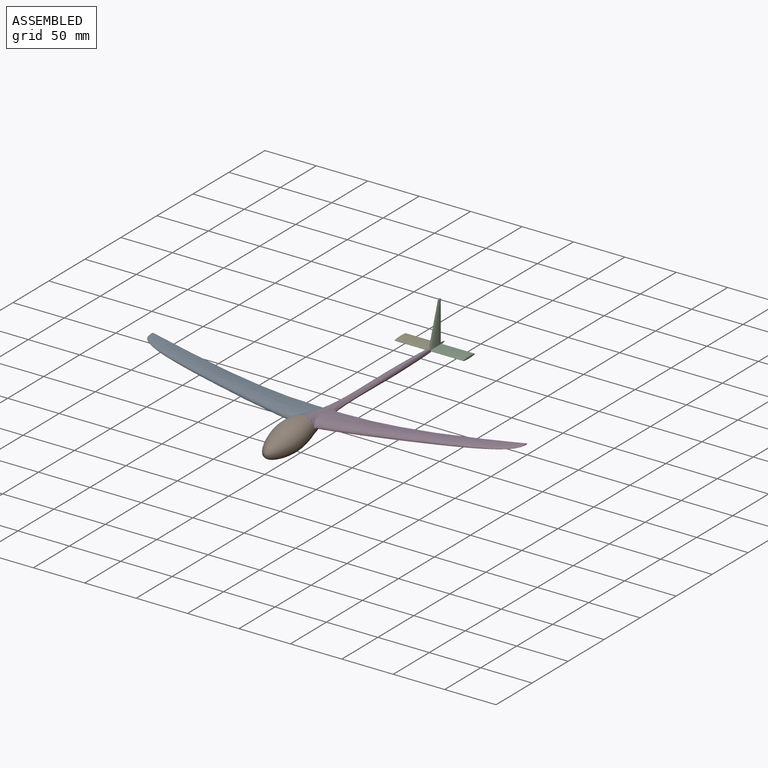
[diagram: assembled view]
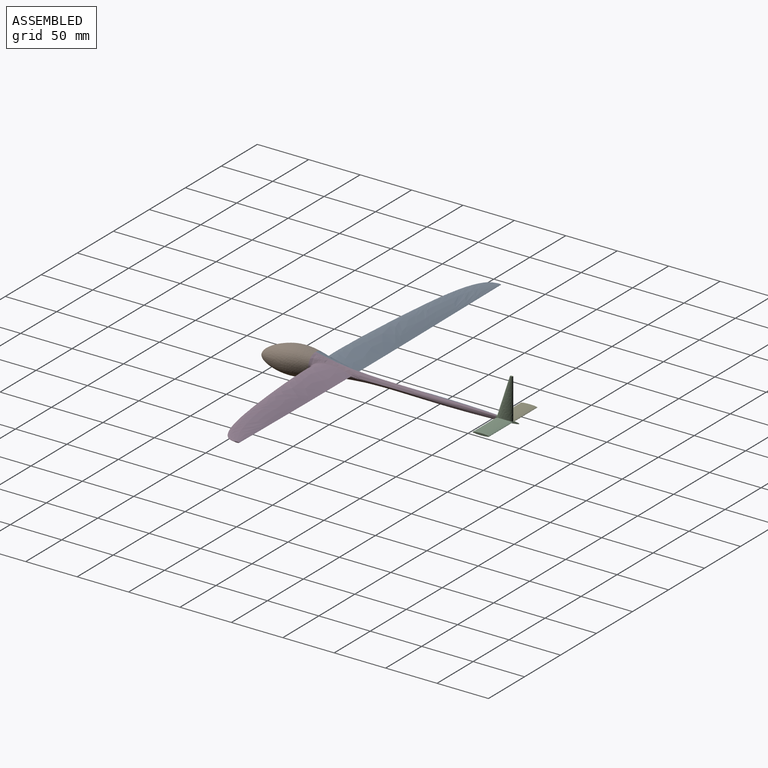
[diagram: assembled view, second angle]
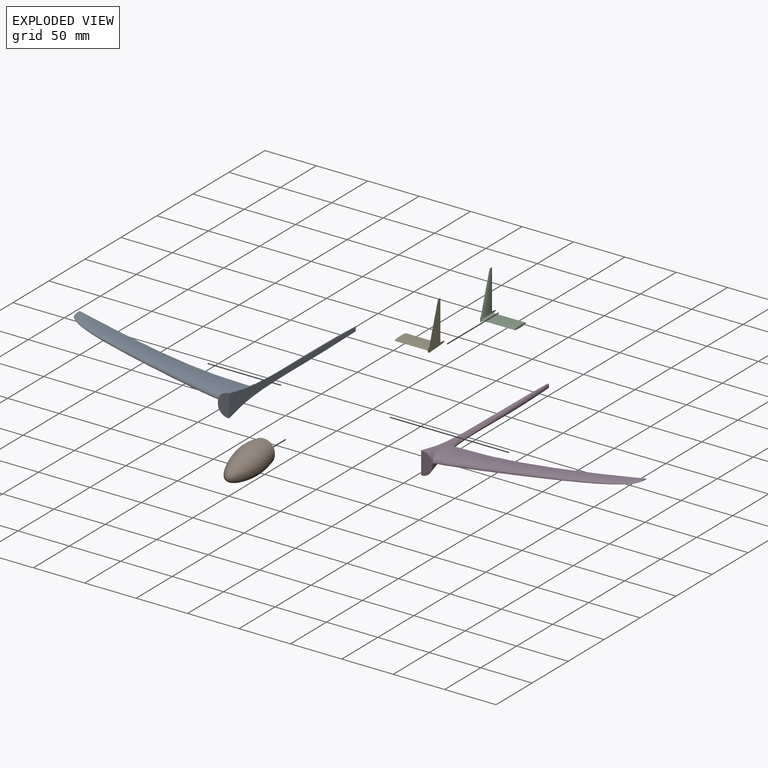
[diagram: exploded view]
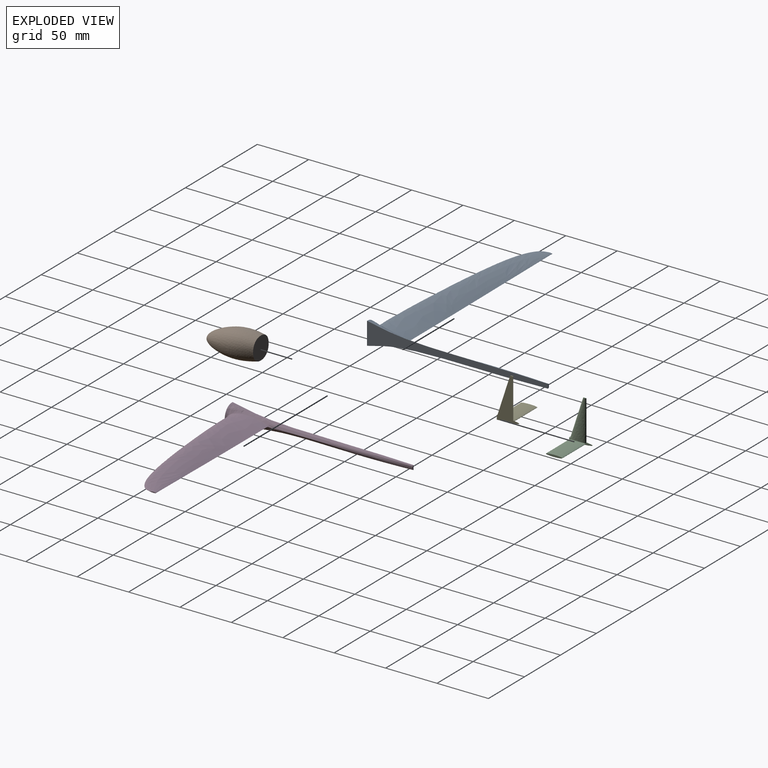
[diagram: exploded view, second angle]
ASSEMBLY  parts=5 mates=4
PART A: 19 faces, bbox 190.2x198.1x28.8 mm
  f0: bspline ~195.77x22.84mm, area 1938.5mm2, adj f1,f7,f8,f9,f10
  f1: plane 176.23x22.06mm, normal (1,0,0), area 1382.1mm2, adj f0,f9,f10
  f2: plane 5x1.02mm, normal (-1,0,0), area 4mm2, adj f3,f4
  f3: bspline ~168.85x49.82mm, area 4922mm2, adj f2,f4,f5
  f4: bspline ~168.85x49.82mm, area 4643.6mm2, adj f2,f3,f6
  f5: extruded ~35.47x8.45mm, area 250.8mm2, adj f3,f6,f7,f8
  f6: extruded ~35x6.94mm, area 163.7mm2, adj f4,f5,f7
  f7: bspline ~52.14x8.75mm, area 97.4mm2, adj f0,f5,f6,f8
  f8: bspline ~49.63x10.01mm, area 59.8mm2, adj f0,f5,f7
  f9: plane 4.2x1.22mm, normal (0,1,0), area 4.5mm2, adj f0,f1
  f10: plane 23.06x11.97mm, normal (0,-1,0), area 192.6mm2, adj f0,f1
  f11: offset ~191.34x23.17mm, area 1344.6mm2, adj f12,f13,f15,f16,f17,f18
  f12: plane 175x20.69mm, normal (-1,0,0), area 1163.1mm2, adj f11,f17,f18
  f13: plane 34.81x19.06mm, normal (1,0,0), area 218.1mm2, adj f11,f14,f15,f16,f18
  f14: extruded ~22.39x3.81mm, area 33.1mm2, adj f13,f15,f16
  f15: bspline ~36.94x5.8mm, area 41mm2, adj f11,f13,f14,f16
  f16: bspline ~43.48x9.52mm, area 53.9mm2, adj f11,f13,f14,f15
  f17: plane 2.86x0.25mm, normal (0,-1,0), area 0.6mm2, adj f11,f12
  f18: plane 20.95x6.27mm, normal (0,1,0), area 116.4mm2, adj f11,f12,f13
PART B: 3 faces, bbox 28x60.1x28.1 mm
  f0: bspline ~58.99x27.01mm, area 1828mm2, adj f1,f2
  f1: plane 23.06x22.82mm, normal (0,1,0), area 385.1mm2, adj f0,f2
  f2: bspline ~58.99x27.01mm, area 1828mm2, adj f0,f1
PART C: 8 faces, bbox 34.7x43.5x42.5 mm
  f0: plane 4.2x1.22mm, normal (0,-1,0), area 4.5mm2, adj f2,f5,f6,f7
  f1: plane 16x2.01mm, normal (1,0,0), area 25.1mm2, adj f2
  f2: extruded ~33.16x16mm, area 1061mm2, adj f0,f1,f4,f6,f7
  f3: plane 3x0.8mm, normal (0,0,1), area 1.9mm2, adj f4,f5
  f4: bspline ~40x16mm, area 402.2mm2, adj f2,f3,f5,f6,f7
  f5: plane 42.12x22mm, normal (-1,0,0), area 418.3mm2, adj f0,f3,f4,f6,f7
  f6: bspline ~43.52x4.94mm, area 33.3mm2, adj f0,f2,f4,f5
  f7: bspline ~38.65x3.74mm, area 3.2mm2, adj f0,f2,f4,f5
PART D: 19 faces, bbox 190.2x198.1x28.8 mm
  f0: bspline ~195.77x22.84mm, area 1938.5mm2, adj f1,f7,f8,f9,f10
  f1: plane 176.23x22.06mm, normal (-1,0,0), area 1382.1mm2, adj f0,f9,f10
  f2: plane 5x1.02mm, normal (1,0,0), area 4mm2, adj f3,f4
  f3: bspline ~168.85x49.82mm, area 4922mm2, adj f2,f4,f5
  f4: bspline ~168.85x49.82mm, area 4643.6mm2, adj f2,f3,f6
  f5: extruded ~35.47x8.46mm, area 250.8mm2, adj f3,f6,f7,f8
  f6: extruded ~35x6.94mm, area 163.7mm2, adj f4,f5,f7
  f7: bspline ~52.14x8.75mm, area 97.4mm2, adj f0,f5,f6,f8
  f8: bspline ~49.63x10mm, area 59.8mm2, adj f0,f5,f7
  f9: plane 4.2x1.22mm, normal (0,1,0), area 4.5mm2, adj f0,f1
  f10: plane 23.05x11.96mm, normal (0,-1,0), area 192.6mm2, adj f0,f1
  f11: offset ~191.34x23.17mm, area 1345mm2, adj f12,f13,f15,f16,f17,f18
  f12: plane 175x20.69mm, normal (1,0,0), area 1163.1mm2, adj f11,f17,f18
  f13: plane 34.81x19.06mm, normal (-1,0,0), area 218.1mm2, adj f11,f14,f15,f16,f18
  f14: extruded ~22.39x3.81mm, area 33.1mm2, adj f13,f15,f16
  f15: bspline ~32.32x5.26mm, area 41mm2, adj f11,f13,f14,f16
  f16: bspline ~41.24x9.14mm, area 53.9mm2, adj f11,f13,f14,f15
  f17: plane 2.86x0.25mm, normal (0,-1,0), area 0.6mm2, adj f11,f12
  f18: plane 20.95x6.27mm, normal (0,1,0), area 116.4mm2, adj f11,f12,f13
PART E: 8 faces, bbox 34.7x43.5x42.5 mm
  f0: plane 4.2x1.22mm, normal (0,-1,0), area 4.5mm2, adj f2,f5,f6,f7
  f1: plane 16x2.01mm, normal (-1,0,0), area 25.1mm2, adj f2
  f2: extruded ~33.16x16mm, area 1061mm2, adj f0,f1,f4,f6,f7
  f3: plane 3x0.8mm, normal (0,0,1), area 1.9mm2, adj f4,f5
  f4: bspline ~40x16mm, area 402.2mm2, adj f2,f3,f5,f6,f7
  f5: plane 42.12x22mm, normal (1,0,0), area 418.3mm2, adj f0,f3,f4,f6,f7
  f6: bspline ~43.52x4.94mm, area 33.3mm2, adj f0,f2,f4,f5
  f7: bspline ~38.65x3.74mm, area 3.2mm2, adj f0,f2,f4,f5
PLACE A t=(0,-0.02,0.02)mm
PLACE B at identity
PLACE C t=(0,0,0.02)mm
PLACE D t=(0,0,0.02)mm
PLACE E t=(0,-0.02,0.02)mm
MATE fastened B.f1 <-> D.f10  axis (0,1,0) through (0,52,4.49)mm
MATE fastened C.f0 <-> D.f9  axis (0,-1,0) through (0.56,228,5)mm
MATE fastened A.f1 <-> D.f1  axis (1,0,0) through (0,120.05,5.01)mm
MATE fastened E.f0 <-> A.f9  axis (0,-1,0) through (-0.56,227.98,5)mm
